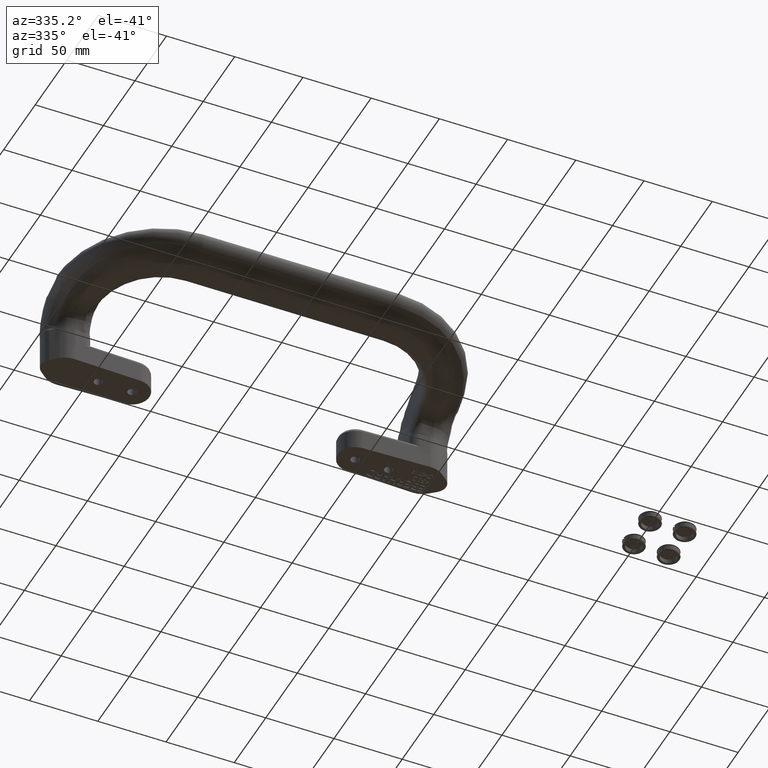
[diagram: clean part render]
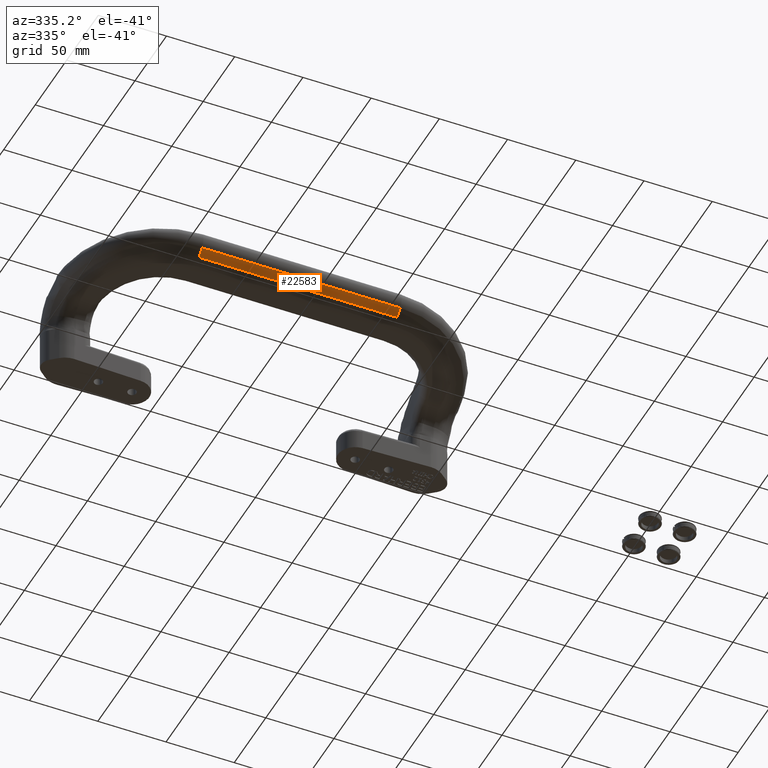
[diagram: same view with one face highlighted and labeled with its STEP entity id]
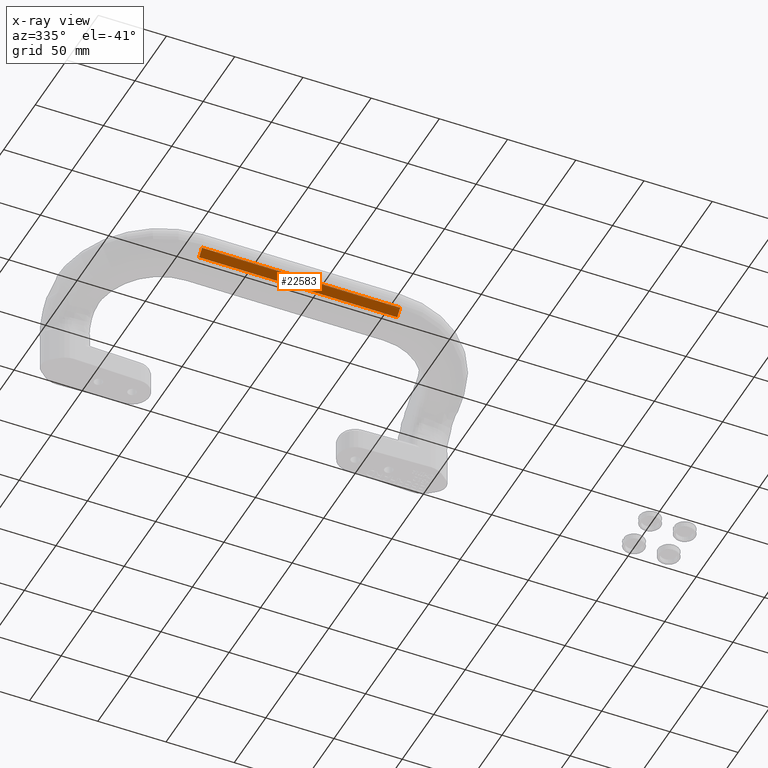
[diagram: x-ray of the same camera — body ghosted, the highlighted face saturated]
A machine part, auxiliary view. The second image highlights one B-rep face of the part: STEP entity #22583.
The next image is the same camera in x-ray: the body ghosted, the highlighted face saturated — about 0% of this face is hidden behind the body in this view.
In plain terms, the highlighted planar face has unit normal (0, -0.7288, -0.6847).
Its self-contained STEP definition (entity closure, byte-faithful):
#1844=PLANE('',#23938);
#2363=FACE_OUTER_BOUND('',#3765,.T.);
#3765=EDGE_LOOP('',(#15711,#15712,#15713,#15714));
#5462=LINE('',#36241,#6735);
#5475=LINE('',#36278,#6748);
#5476=LINE('',#36281,#6749);
#5477=LINE('',#36282,#6750);
#6735=VECTOR('',#27210,0.00155000310001023);
#6748=VECTOR('',#27253,0.00155000310000955);
#6749=VECTOR('',#27256,0.00155000310000977);
#6750=VECTOR('',#27257,0.00155000310000955);
#9128=VERTEX_POINT('',#36236);
#9129=VERTEX_POINT('',#36240);
#9138=VERTEX_POINT('',#36276);
#9139=VERTEX_POINT('',#36280);
#11454=EDGE_CURVE('',#9128,#9129,#5462,.F.);
#11473=EDGE_CURVE('',#9128,#9138,#5475,.F.);
#11474=EDGE_CURVE('',#9138,#9139,#5476,.T.);
#11475=EDGE_CURVE('',#9129,#9139,#5477,.T.);
#15711=ORIENTED_EDGE('',*,*,#11454,.F.);
#15712=ORIENTED_EDGE('',*,*,#11473,.T.);
#15713=ORIENTED_EDGE('',*,*,#11474,.T.);
#15714=ORIENTED_EDGE('',*,*,#11475,.F.);
#22583=ADVANCED_FACE('',(#2363),#1844,.T.);
#23938=AXIS2_PLACEMENT_3D('',#36279,#27254,#27255);
#27210=DIRECTION('',(2.85703427405387E-14,-0.684714942791381,0.728810981749174));
#27253=DIRECTION('',(1.,0.,0.));
#27254=DIRECTION('center_axis',(0.,-0.728809193426828,-0.684716846277742));
#27255=DIRECTION('ref_axis',(-1.,0.,0.));
#27256=DIRECTION('',(0.,0.684716846277742,-0.728809193426828));
#27257=DIRECTION('',(-1.,0.,0.));
#36236=CARTESIAN_POINT('',(-0.35999935502283,-3.58929584474752,2.30573439188903));
#36240=CARTESIAN_POINT('',(-0.360006337409873,-3.40995641563175,2.1148474147998));
#36241=CARTESIAN_POINT('',(-0.36,-3.49962670955,2.21029088917));
#36276=CARTESIAN_POINT('',(-6.0775,-3.5892960940139,2.3057341577021));
#36278=CARTESIAN_POINT('',(-3.21875,-3.58929603273,2.30573421528));
#36279=CARTESIAN_POINT('Origin',(-0.36,-0.755875020184,-0.710145213134));
#36280=CARTESIAN_POINT('',(-6.0775,-3.40995723327135,2.11484664667143));
#36281=CARTESIAN_POINT('',(-6.0775,-3.49962676322,2.21029044678));
#36282=CARTESIAN_POINT('',(-3.21875,-3.40995723327,2.11484664667));